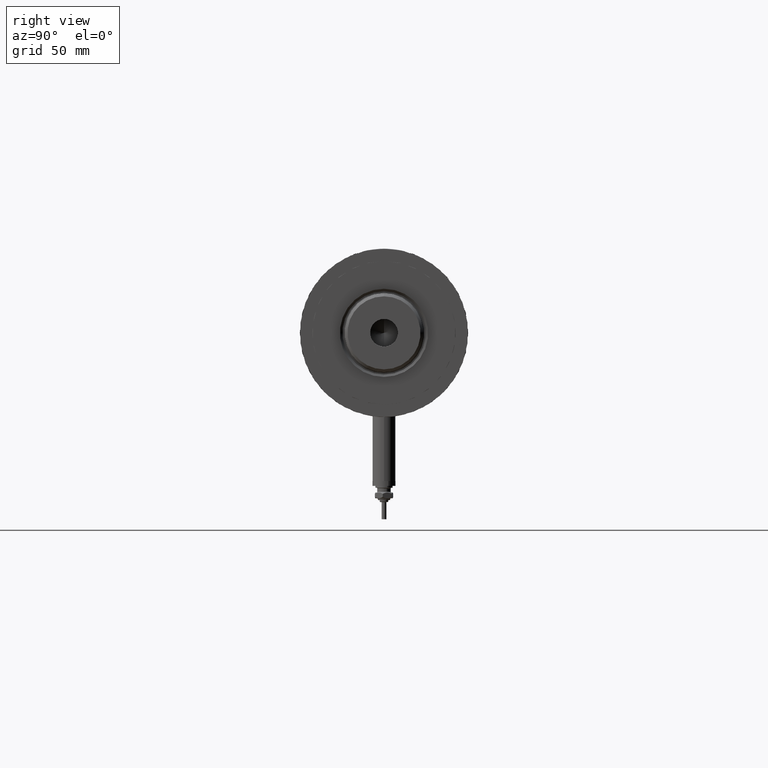
[diagram: clean part render]
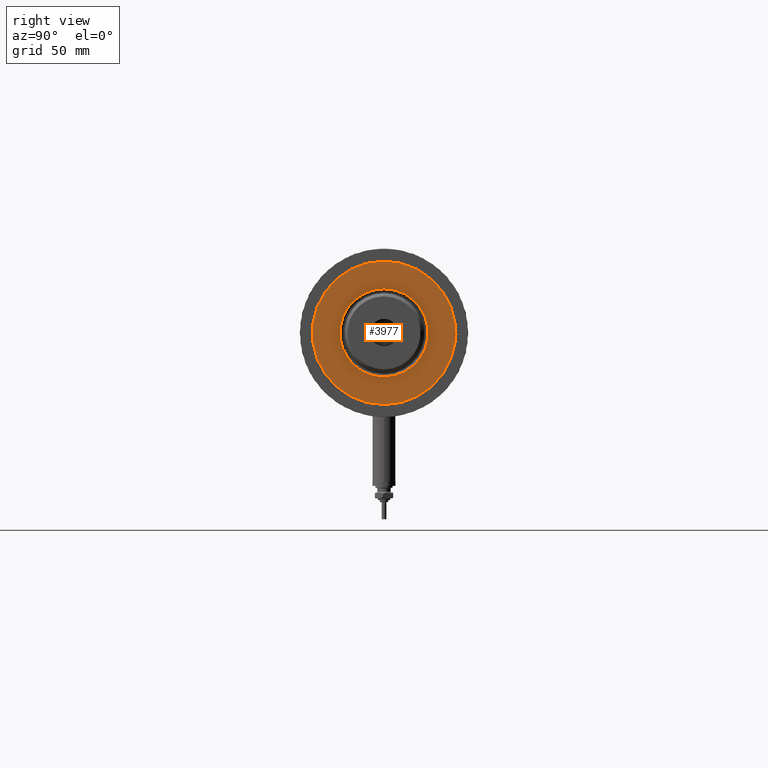
[diagram: same view with one face highlighted and labeled with its STEP entity id]
A machine part, right view. The second image highlights one B-rep face of the part: STEP entity #3977.
In plain terms, the highlighted planar face has unit normal (1, 0, -0).
Its self-contained STEP definition (entity closure, byte-faithful):
#30 = FACE_OUTER_BOUND ( 'NONE', #1675, .T. ) ;
#72 = VERTEX_POINT ( 'NONE', #2232 ) ;
#109 = DIRECTION ( 'NONE',  ( 1.000000000000000000, 0.000000000000000000, 0.000000000000000000 ) ) ;
#176 = CARTESIAN_POINT ( 'NONE',  ( 23.05000000000002913, 0.000000000000000000, 59.89999999999999147 ) ) ;
#363 = CARTESIAN_POINT ( 'NONE',  ( -23.05000000000002913, 2.822810872034651791E-15, 59.89999999999999147 ) ) ;
#376 = CARTESIAN_POINT ( 'NONE',  ( -37.50000000000000711, 0.000000000000000000, 59.89999999999999147 ) ) ;
#414 = CIRCLE ( 'NONE', #5640, 37.50000000000000711 ) ;
#582 = DIRECTION ( 'NONE',  ( -0.000000000000000000, -0.000000000000000000, -1.000000000000000000 ) ) ;
#585 = CARTESIAN_POINT ( 'NONE',  ( 0.000000000000000000, 0.000000000000000000, 59.89999999999999147 ) ) ;
#852 = DIRECTION ( 'NONE',  ( 1.000000000000000000, 0.000000000000000000, 0.000000000000000000 ) ) ;
#1239 = CIRCLE ( 'NONE', #4113, 23.05000000000002913 ) ;
#1264 = EDGE_CURVE ( 'NONE', #72, #3409, #414, .T. ) ;
#1444 = FACE_BOUND ( 'NONE', #2858, .T. ) ;
#1612 = AXIS2_PLACEMENT_3D ( 'NONE', #3195, #2300, #2691 ) ;
#1647 = VERTEX_POINT ( 'NONE', #363 ) ;
#1675 = EDGE_LOOP ( 'NONE', ( #5487, #5895 ) ) ;
#2020 = DIRECTION ( 'NONE',  ( 0.000000000000000000, 0.000000000000000000, 1.000000000000000000 ) ) ;
#2232 = CARTESIAN_POINT ( 'NONE',  ( 37.50000000000000711, 4.592425496802575156E-15, 59.89999999999999147 ) ) ;
#2283 = CIRCLE ( 'NONE', #3912, 37.50000000000000711 ) ;
#2300 = DIRECTION ( 'NONE',  ( 0.000000000000000000, 0.000000000000000000, 1.000000000000000000 ) ) ;
#2396 = AXIS2_PLACEMENT_3D ( 'NONE', #2806, #5522, #5076 ) ;
#2577 = CIRCLE ( 'NONE', #2396, 23.05000000000002913 ) ;
#2660 = DIRECTION ( 'NONE',  ( 0.000000000000000000, 0.000000000000000000, 1.000000000000000000 ) ) ;
#2678 = EDGE_CURVE ( 'NONE', #3409, #72, #2283, .T. ) ;
#2691 = DIRECTION ( 'NONE',  ( 1.000000000000000000, 0.000000000000000000, -0.000000000000000000 ) ) ;
#2806 = CARTESIAN_POINT ( 'NONE',  ( 0.000000000000000000, 0.000000000000000000, 59.89999999999999147 ) ) ;
#2858 = EDGE_LOOP ( 'NONE', ( #3311, #4659 ) ) ;
#3139 = CARTESIAN_POINT ( 'NONE',  ( 0.000000000000000000, 0.000000000000000000, 59.89999999999999147 ) ) ;
#3195 = CARTESIAN_POINT ( 'NONE',  ( 0.000000000000000000, 0.000000000000000000, 59.89999999999999147 ) ) ;
#3225 = PLANE ( 'NONE',  #1612 ) ;
#3311 = ORIENTED_EDGE ( 'NONE', *, *, #4967, .T. ) ;
#3409 = VERTEX_POINT ( 'NONE', #376 ) ;
#3905 = DIRECTION ( 'NONE',  ( 1.000000000000000000, 0.000000000000000000, 0.000000000000000000 ) ) ;
#3912 = AXIS2_PLACEMENT_3D ( 'NONE', #3139, #2660, #852 ) ;
#3977 = ADVANCED_FACE ( 'NONE', ( #1444, #30 ), #3225, .T. ) ;
#4113 = AXIS2_PLACEMENT_3D ( 'NONE', #5148, #582, #109 ) ;
#4657 = VERTEX_POINT ( 'NONE', #176 ) ;
#4659 = ORIENTED_EDGE ( 'NONE', *, *, #5343, .T. ) ;
#4967 = EDGE_CURVE ( 'NONE', #4657, #1647, #1239, .T. ) ;
#5076 = DIRECTION ( 'NONE',  ( 1.000000000000000000, 0.000000000000000000, 0.000000000000000000 ) ) ;
#5148 = CARTESIAN_POINT ( 'NONE',  ( 0.000000000000000000, 0.000000000000000000, 59.89999999999999147 ) ) ;
#5343 = EDGE_CURVE ( 'NONE', #1647, #4657, #2577, .T. ) ;
#5487 = ORIENTED_EDGE ( 'NONE', *, *, #2678, .T. ) ;
#5522 = DIRECTION ( 'NONE',  ( -0.000000000000000000, -0.000000000000000000, -1.000000000000000000 ) ) ;
#5640 = AXIS2_PLACEMENT_3D ( 'NONE', #585, #2020, #3905 ) ;
#5895 = ORIENTED_EDGE ( 'NONE', *, *, #1264, .T. ) ;